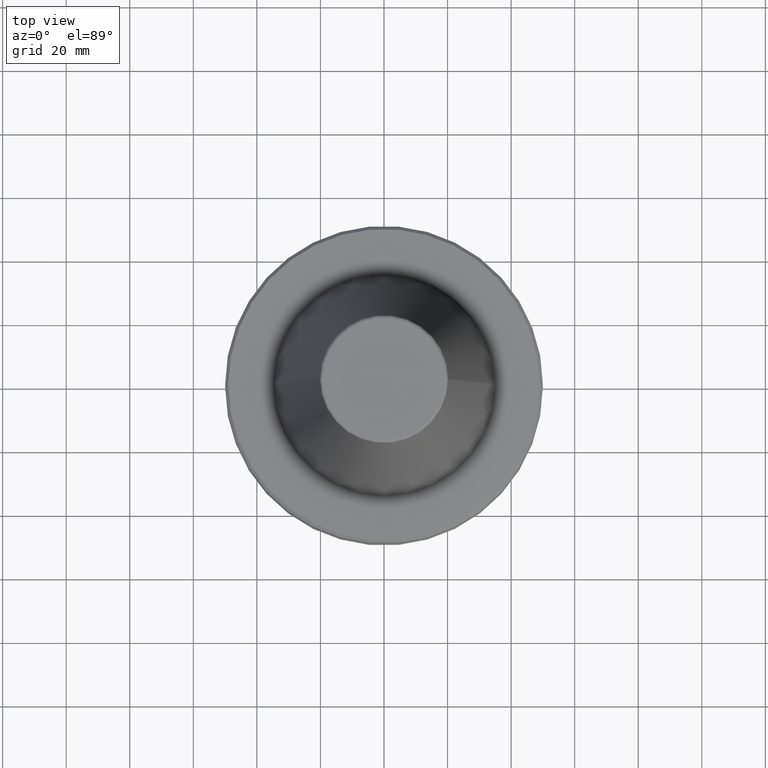
[diagram: clean part render]
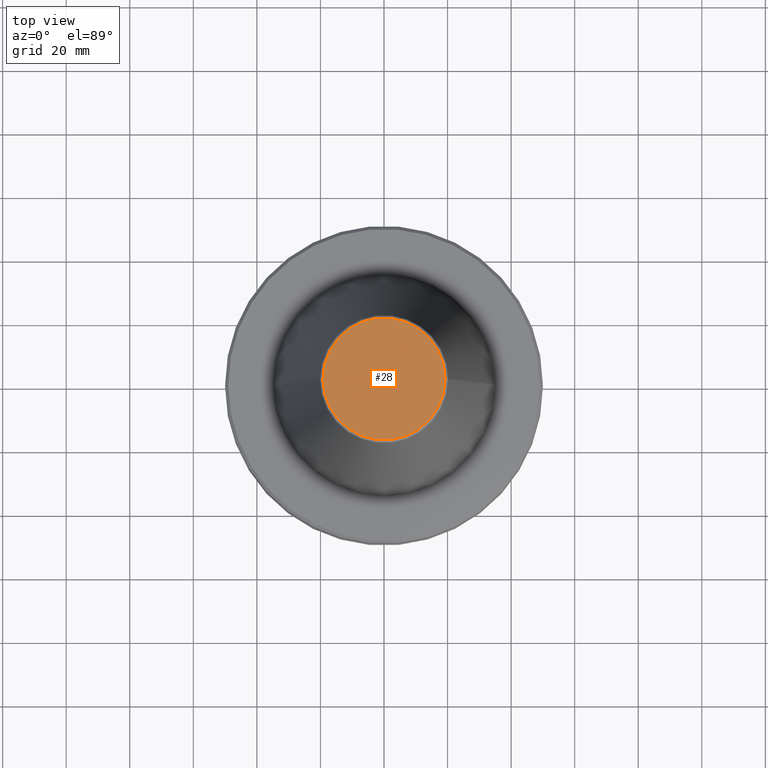
[diagram: same view with one face highlighted and labeled with its STEP entity id]
A machine part, top view. The second image highlights one B-rep face of the part: STEP entity #28.
In plain terms, the highlighted planar face has unit normal (0, 0, -1).
Its self-contained STEP definition (entity closure, byte-faithful):
#9 = PLANE ( 'NONE',  #398 ) ;
#28 = ADVANCED_FACE ( 'NONE', ( #463 ), #9, .F. ) ;
#92 = CARTESIAN_POINT ( 'NONE',  ( 19.21428366486932400, 0.0000000000000000000, 101.7999999999988200 ) ) ;
#157 = CARTESIAN_POINT ( 'NONE',  ( 0.0000000000000000000, 0.0000000000000000000, 101.7999999999988200 ) ) ;
#169 = VERTEX_POINT ( 'NONE', #170 ) ;
#170 = CARTESIAN_POINT ( 'NONE',  ( -19.21428366486932400, 2.413662506824872900E-015, 101.7999999999988200 ) ) ;
#179 = DIRECTION ( 'NONE',  ( 1.000000000000000000, 0.0000000000000000000, 0.0000000000000000000 ) ) ;
#185 = EDGE_CURVE ( 'NONE', #814, #169, #657, .T. ) ;
#206 = DIRECTION ( 'NONE',  ( -0.0000000000000000000, -0.0000000000000000000, 1.000000000000000000 ) ) ;
#243 = EDGE_CURVE ( 'NONE', #169, #814, #454, .T. ) ;
#299 = CARTESIAN_POINT ( 'NONE',  ( 0.0000000000000000000, 19.21428366486932400, 101.7999999999988000 ) ) ;
#358 = DIRECTION ( 'NONE',  ( -1.000000000000000000, 0.0000000000000000000, -0.0000000000000000000 ) ) ;
#389 = DIRECTION ( 'NONE',  ( 0.0000000000000000000, 0.0000000000000000000, -1.000000000000000000 ) ) ;
#398 = AXIS2_PLACEMENT_3D ( 'NONE', #299, #389, #358 ) ;
#453 = EDGE_LOOP ( 'NONE', ( #526, #486 ) ) ;
#454 = CIRCLE ( 'NONE', #709, 19.21428366486932400 ) ;
#463 = FACE_OUTER_BOUND ( 'NONE', #453, .T. ) ;
#486 = ORIENTED_EDGE ( 'NONE', *, *, #243, .T. ) ;
#523 = DIRECTION ( 'NONE',  ( -0.0000000000000000000, -0.0000000000000000000, 1.000000000000000000 ) ) ;
#526 = ORIENTED_EDGE ( 'NONE', *, *, #185, .T. ) ;
#657 = CIRCLE ( 'NONE', #747, 19.21428366486932400 ) ;
#683 = DIRECTION ( 'NONE',  ( 1.000000000000000000, 0.0000000000000000000, 0.0000000000000000000 ) ) ;
#709 = AXIS2_PLACEMENT_3D ( 'NONE', #787, #206, #683 ) ;
#747 = AXIS2_PLACEMENT_3D ( 'NONE', #157, #523, #179 ) ;
#787 = CARTESIAN_POINT ( 'NONE',  ( 0.0000000000000000000, 0.0000000000000000000, 101.7999999999988200 ) ) ;
#814 = VERTEX_POINT ( 'NONE', #92 ) ;